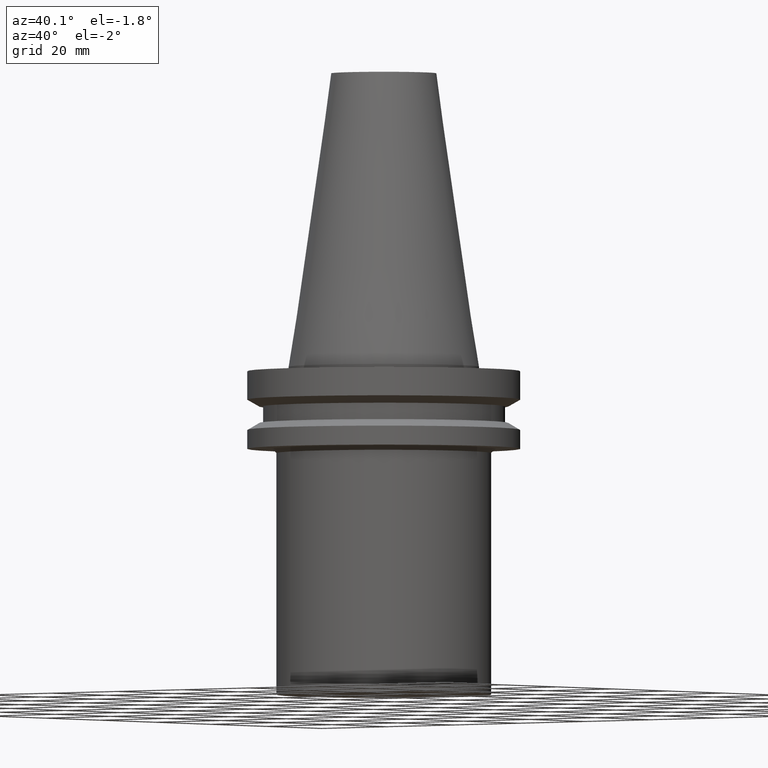
[diagram: clean part render]
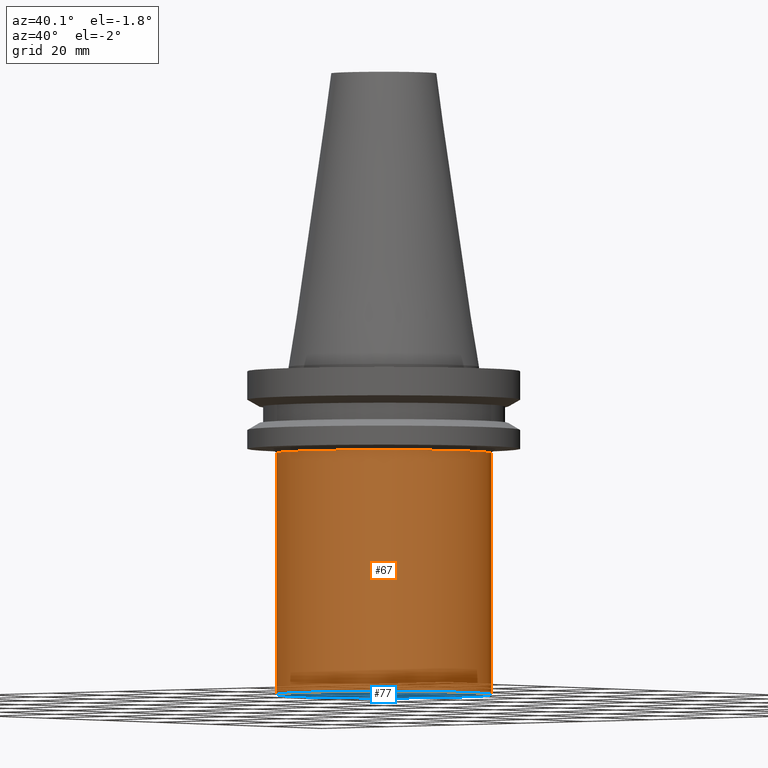
[diagram: same view with the hole feature highlighted: cylindrical wall and planar end face, labeled with their STEP entity ids]
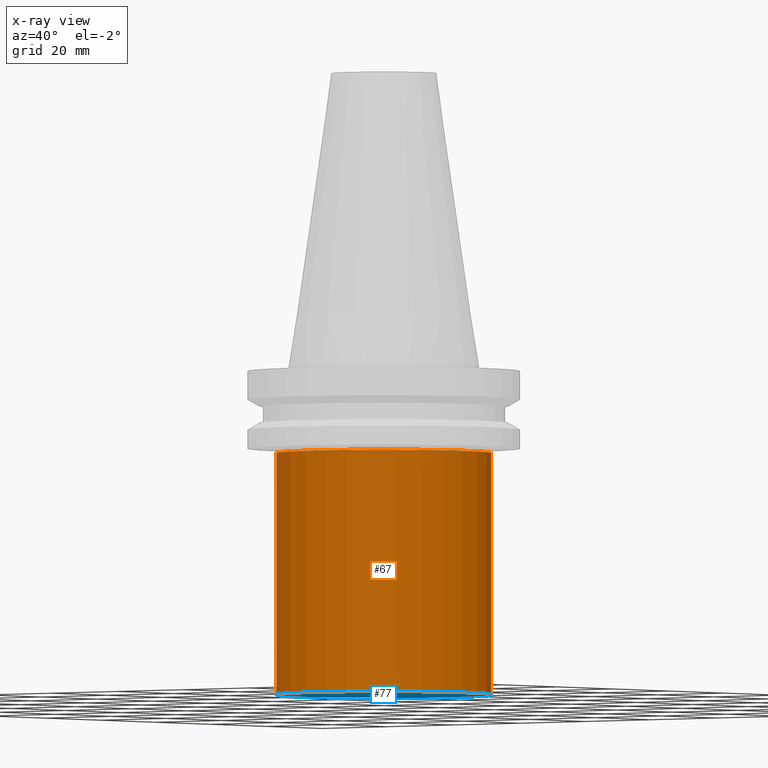
[diagram: x-ray of the same camera — body ghosted, the hole faces saturated]
A machine part, auxiliary view. The highlighted faces form one hole feature of diameter 50 mm: the cylindrical wall (entity #67, orange) and its adjacent planar end face (entity #77, blue) — they share a circular edge in the B-rep.
The next image is the same camera in x-ray (body ghosted, the hole faces saturated) — the bore reads through the body.
Wall:
#67=ADVANCED_FACE('Unnamed[1]',(#166,#167),#168,.T.);
#121=EDGE_CURVE('Unnamed[1]',#250,#250,#251,.T.);
#123=EDGE_CURVE('Unnamed[1]',#253,#253,#254,.T.);
#166=FACE_BOUND('',#296,.T.);
#167=FACE_BOUND('',#297,.T.);
#168=CYLINDRICAL_SURFACE('',#298,25.0);
#250=VERTEX_POINT('',#400);
#251=CIRCLE('',#401,25.0);
#253=VERTEX_POINT('',#404);
#254=CIRCLE('',#405,24.9999999999999);
#296=EDGE_LOOP('',(#439));
#297=EDGE_LOOP('',(#440));
#298=AXIS2_PLACEMENT_3D('',#441,#442,#443);
#400=CARTESIAN_POINT('',(1.22770841614521E-015,25.0000000000001,-20.0499999999999));
#401=AXIS2_PLACEMENT_3D('',#533,#534,#535);
#404=CARTESIAN_POINT('',(4.66590430475142E-015,25.0,-76.2));
#405=AXIS2_PLACEMENT_3D('',#536,#537,#538);
#439=ORIENTED_EDGE('',*,*,#123,.F.);
#440=ORIENTED_EDGE('',*,*,#121,.T.);
#441=CARTESIAN_POINT('',(2.94680636044832E-015,3.65265396439778E-014,-48.1249999999999));
#442=DIRECTION('',(6.12323399573676E-017,8.51860445125046E-016,-1.0));
#443=DIRECTION('',(-5.69885611028989E-032,1.0,8.51860445125046E-016));
#533=CARTESIAN_POINT('',(1.22770841614521E-015,1.26105576470929E-014,-20.0499999999999));
#534=DIRECTION('',(6.12323399573677E-017,8.51860445125044E-016,-1.0));
#535=DIRECTION('',(-5.69885611028987E-032,1.0,8.51860445125044E-016));
#536=CARTESIAN_POINT('',(4.66590430475142E-015,6.04425216408627E-014,-76.2));
#537=DIRECTION('',(6.12323399573677E-017,8.51860445124983E-016,-1.0));
#538=DIRECTION('',(-5.6988561102899E-032,1.0,8.51860445124983E-016));
End face:
#77=ADVANCED_FACE('Unnamed[1]',(#182),#183,.T.);
#123=EDGE_CURVE('Unnamed[1]',#253,#253,#254,.T.);
#182=FACE_OUTER_BOUND('',#316,.T.);
#183=PLANE('',#317);
#253=VERTEX_POINT('',#404);
#254=CIRCLE('',#405,24.9999999999999);
#316=EDGE_LOOP('',(#457));
#317=AXIS2_PLACEMENT_3D('',#458,#459,#460);
#404=CARTESIAN_POINT('',(4.66590430475142E-015,25.0,-76.2));
#405=AXIS2_PLACEMENT_3D('',#536,#537,#538);
#457=ORIENTED_EDGE('',*,*,#123,.T.);
#458=CARTESIAN_POINT('',(4.66590430475142E-015,12.5,-76.2));
#459=DIRECTION('',(6.12323399573677E-017,1.22464679914735E-016,-1.0));
#460=DIRECTION('',(-1.23259516440783E-032,1.0,1.22464679914735E-016));
#536=CARTESIAN_POINT('',(4.66590430475142E-015,6.04425216408627E-014,-76.2));
#537=DIRECTION('',(6.12323399573677E-017,8.51860445124983E-016,-1.0));
#538=DIRECTION('',(-5.6988561102899E-032,1.0,8.51860445124983E-016));